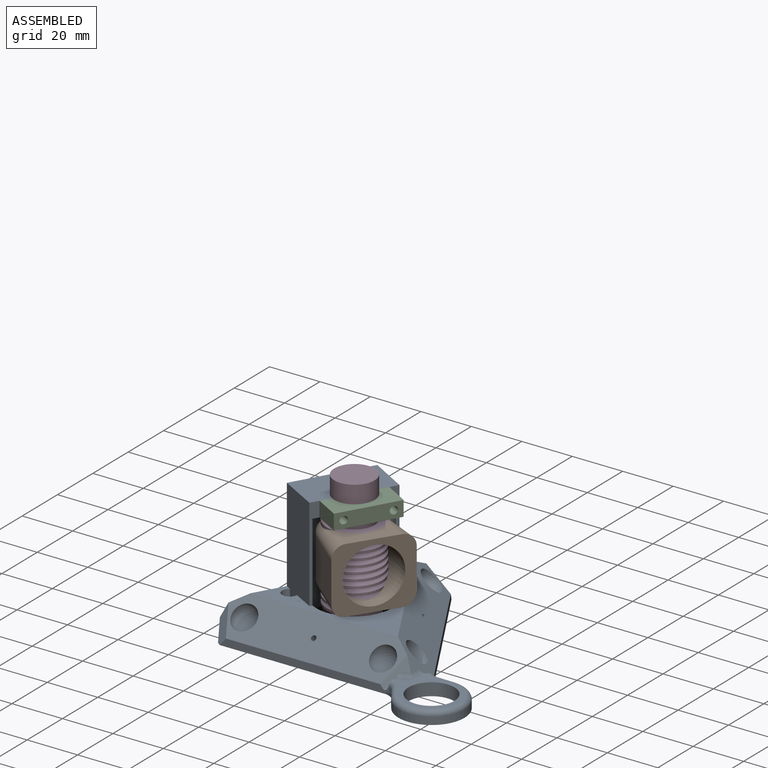
[diagram: assembled view]
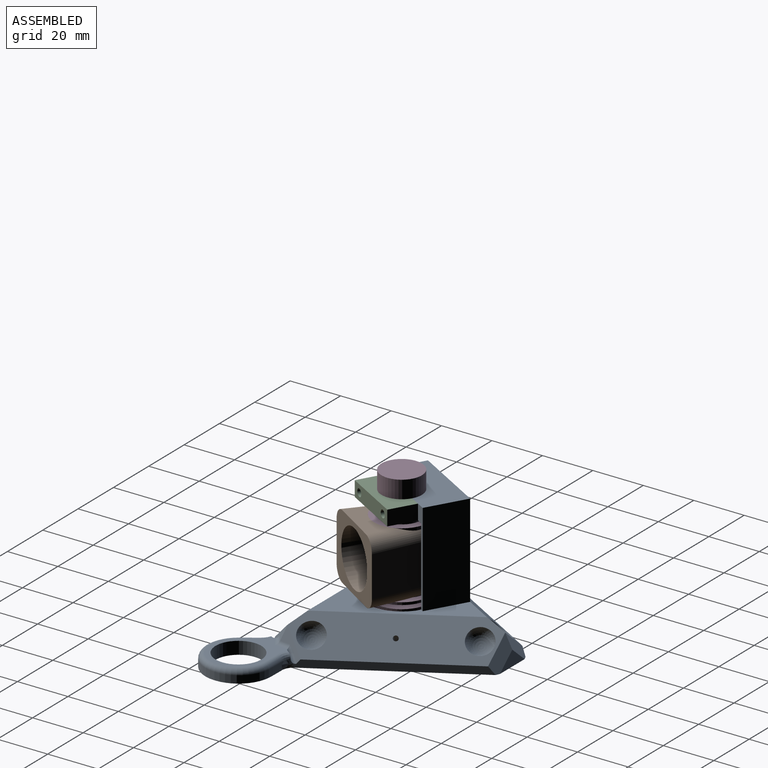
[diagram: assembled view, second angle]
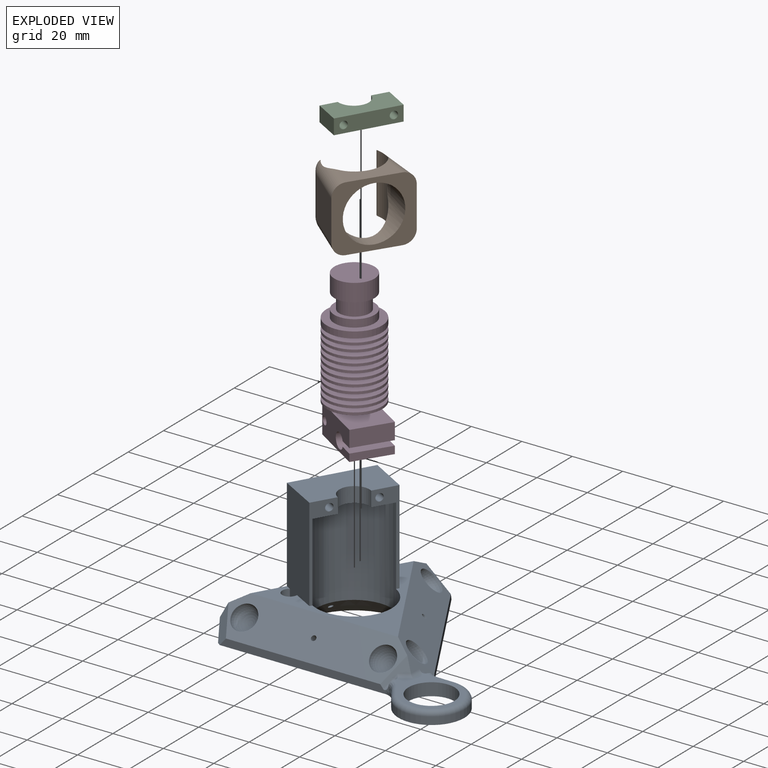
[diagram: exploded view]
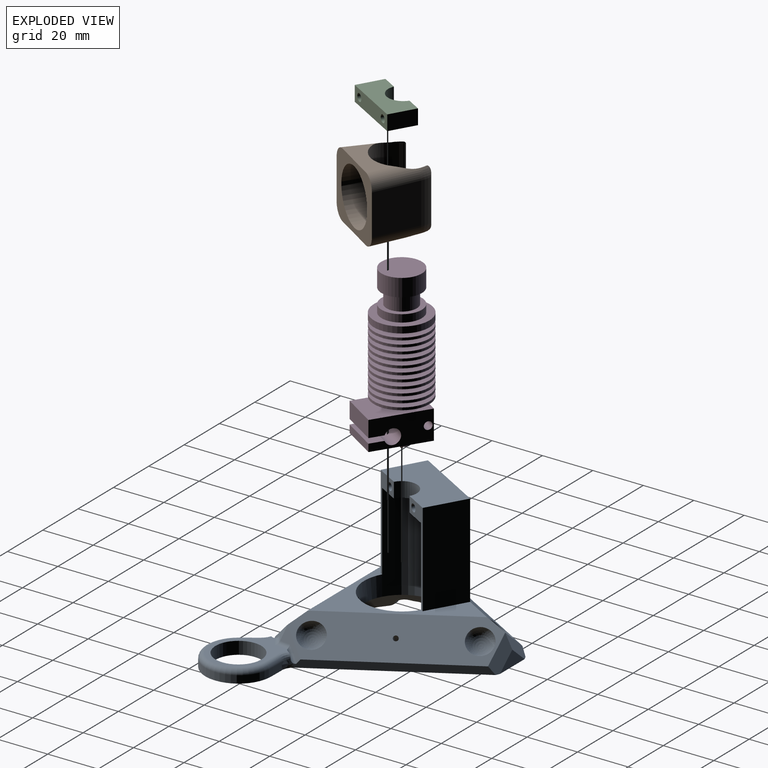
[diagram: exploded view, second angle]
ASSEMBLY  parts=4 mates=7
PART A: 66 faces, bbox 106.9x87.1x56.5 mm
  f0: plane 1.96x1.96mm, normal (0,0,-1), area 1.7mm2, adj f50,f62,f65
  f1: cone r=22mm half-angle=45deg, axis (0,0,-1), area 873.7mm2, adj f2,f9,f27,f28,f29,f56,f57,f62
  f2: plane 105.67x85.89mm, normal (0,0,-1), area 2695.6mm2, adj f1,f6,f7,f8,f19,f20,f21,f22
  f3: plane 37x8.78mm, normal (0.87,-0.5,0), area 86.6mm2, adj f5,f9,f50,f51,f52,f53,f55
  f4: plane 37x8.78mm, normal (0.87,-0.5,0), area 91.4mm2, adj f5,f9,f48,f51,f52,f53,f54
  f5: plane 58.43x50.6mm, normal (0,0,1), area 557mm2, adj f3,f4,f9,f10,f11,f12,f48,f50
  f6: plane 57.23x33.04mm, normal (-0.87,0.5,0), area 190.9mm2, adj f2,f10,f22,f25
  f7: plane 66.09x3mm, normal (0,-1,0), area 190.9mm2, adj f2,f11,f24,f26,f40
  f8: plane 57.23x33.04mm, normal (0.87,0.5,0), area 190.9mm2, adj f2,f12,f21,f23,f39
  f9: cylinder r=15mm len=39mm, axis (0,0,-1), area 2136.1mm2, adj f1,f3,f4,f5,f52,f56,f57,f59
  f10: plane 61.39x40.3mm, normal (-0.61,0.35,0.71), area 953.5mm2, adj f5,f6,f11,f12,f15,f16,f22,f25
  f11: plane 70.89x12mm, normal (0,-0.71,0.71), area 953.5mm2, adj f5,f7,f10,f12,f13,f14,f24,f26
  f12: plane 61.39x40.3mm, normal (0.61,0.35,0.71), area 953.5mm2, adj f5,f8,f10,f11,f17,f18,f21,f23
  f13: sphere r=5mm, area 157.1mm2, adj f11
  f14: sphere r=5mm, area 157.1mm2, adj f11
  f15: sphere r=5mm, area 157.1mm2, adj f10
  f16: sphere r=5mm, area 157.1mm2, adj f10
  f17: sphere r=5mm, area 157.1mm2, adj f12
  f18: sphere r=5mm, area 157.1mm2, adj f12
  f19: plane 13.93x6.03mm, normal (0,1,0), area 42mm2, adj f2,f21,f22
  f20: plane 12.06x6.96mm, normal (-0.87,-0.5,0), area 42mm2, adj f2,f25,f26
  f21: plane 11.4x9.7mm, normal (0.37,0.82,0.43), area 57.2mm2, adj f2,f8,f12,f19,f22
  f22: plane 11.4x9.7mm, normal (-0.37,0.82,0.43), area 57.2mm2, adj f2,f6,f10,f19,f21
  f23: plane 9.79x9.78mm, normal (0.9,-0.09,0.43), area 29.6mm2, adj f8,f12,f24,f38,f42
  f24: plane 9.79x8.4mm, normal (0.53,-0.73,0.43), area 29.6mm2, adj f7,f11,f23,f37,f41
  f25: plane 11.4x9.81mm, normal (-0.9,-0.09,0.43), area 57.2mm2, adj f2,f6,f10,f20,f26
  f26: plane 11.4x8.4mm, normal (-0.53,-0.73,0.43), area 57.2mm2, adj f2,f7,f11,f20,f25
  f27: cylinder r=1mm len=6.35mm, axis (0,-0.71,0.71), area 43.8mm2, adj f1,f11
  f28: cylinder r=1mm len=6.35mm, axis (-0.61,0.35,0.71), area 43.9mm2, adj f1,f10
  f29: cylinder r=1mm len=6.35mm, axis (0.61,0.35,0.71), area 43.9mm2, adj f1,f12
  f30: plane 1.92x1.92mm, normal (-0.87,0.5,0), area 1.1mm2, adj f36,f38,f39,f43
  f31: plane 1.71x1.71mm, normal (-0.87,0.5,0), area 0.9mm2, adj f37,f40,f47
  f32: cylinder r=13.1mm len=26.2mm, axis (0,0,-1), area 163.8mm2, adj f2,f33,f34,f45
  f33: plane 5.39x3.68mm, normal (-0.83,-0.56,0), area 19.1mm2, adj f2,f32,f40,f46
  f34: plane 5.37x3mm, normal (0.01,1,0), area 15.8mm2, adj f2,f32,f39,f44
  f35: cylinder r=9.1mm len=18.2mm, axis (0,0,-1), area 285.9mm2, adj f2,f36
  f36: plane 27.38x23.75mm, normal (0,0,1), area 183.1mm2, adj f30,f35,f37,f38,f41,f42,f43,f44
  f37: cylinder r=1mm len=5.8mm, axis (0.38,0.65,0.65), area 12.9mm2, adj f24,f31,f36,f40,f41,f47
  f38: cylinder r=1mm len=5.38mm, axis (0.38,0.65,-0.65), area 12.4mm2, adj f23,f30,f36,f39,f42
  f39: bspline ~6.15x5.19mm, area 13.3mm2, adj f2,f8,f30,f34,f38,f43
  f40: bspline ~6.2x5.6mm, area 13.3mm2, adj f2,f7,f31,f33,f37,f47
  f41: cylinder r=2mm len=5.48mm, axis (-0.81,-0.58,0), area 11mm2, adj f24,f36,f37,f42
  f42: cylinder r=2mm len=5.6mm, axis (-0.1,-1,0), area 11mm2, adj f23,f36,f38,f41
  f43: bspline ~6.39x3.37mm, area 11.5mm2, adj f30,f36,f39,f44
  f44: cylinder r=2mm len=5.45mm, axis (-1,0.01,0), area 17mm2, adj f34,f36,f43,f45
  f45: torus R=11.1mm, axis (0,0,-1), area 162.1mm2, adj f32,f36,f44,f46
  f46: cylinder r=2mm len=6.53mm, axis (0.56,-0.83,0), area 20.5mm2, adj f33,f36,f45,f47
  f47: bspline ~5.53x5.16mm, area 11mm2, adj f31,f36,f37,f40,f46
  f48: plane 37x14.72mm, normal (0.5,0.87,0), area 629mm2, adj f4,f5,f49,f51
  f49: plane 37x28.09mm, normal (-0.87,0.5,0), area 1185.8mm2, adj f10,f48,f50,f51,f54,f55
  f50: plane 49.45x14.95mm, normal (-0.49,-0.87,0), area 692.9mm2, adj f0,f3,f5,f49,f51,f62,f64,f65
  f51: plane 36.45x30.94mm, normal (0,0,1), area 493.4mm2, adj f3,f4,f48,f49,f50,f53
  f52: plane 28.06x22.61mm, normal (0,0,-1), area 300.9mm2, adj f3,f4,f9,f53
  f53: cylinder r=6mm len=11.2mm, axis (0,0,1), area 113.1mm2, adj f3,f4,f51,f52
  f54: cylinder r=1.5mm len=16.22mm, axis (0.87,-0.5,0), area 160.2mm2, adj f4,f49
  f55: cylinder r=1.5mm len=16.22mm, axis (0.87,-0.5,0), area 160.2mm2, adj f3,f49
  f56: plane 11x10.5mm, normal (0.52,0.85,0), area 104.6mm2, adj f1,f2,f9,f11,f58,f59
  f57: plane 11x10.45mm, normal (-0.52,-0.85,0), area 105mm2, adj f1,f2,f9,f58,f59
  f58: plane 16.69x11mm, normal (-0.84,0.54,0), area 218.7mm2, adj f2,f11,f56,f57,f59
  f59: plane 23.07x21.3mm, normal (0,0,-1), area 192.6mm2, adj f9,f11,f56,f57,f58
  f60: plane 8.33x4.45mm, normal (0.88,0.47,0), area 23.9mm2, adj f2,f61,f62,f63
  f61: plane 5.64x4.77mm, normal (0,0,-1), area 13.1mm2, adj f60,f62,f63,f64
  f62: cylinder r=3mm len=9.28mm, axis (0.89,0.47,0), area 35.7mm2, adj f0,f1,f2,f50,f60,f61,f64,f65
  f63: cylinder r=3mm len=7.61mm, axis (-0.93,-0.36,0), area 23.1mm2, adj f2,f60,f61,f64,f65
  f64: cylinder r=3mm len=12.3mm, axis (0,0,1), area 146.5mm2, adj f5,f50,f61,f62,f63,f65
  f65: bspline ~12.78x9.27mm, area 34.3mm2, adj f0,f1,f2,f50,f62,f63,f64
PART B: 21 faces, bbox 24x30x26.1 mm
  f0: cylinder r=11mm len=26.1mm, axis (0,0,-1), area 636.9mm2, adj f3,f4,f8,f9,f10,f11,f12,f13
  f1: plane 18.34x16.1mm, normal (0.13,-0.99,0), area 298mm2, adj f2,f7,f13,f15
  f2: cylinder r=12.66mm len=16.1mm, axis (0,0,-1), area 66.8mm2, adj f1,f3,f14,f16
  f3: cylinder r=0.86mm len=23.54mm, axis (0,0,-1), area 49.3mm2, adj f0,f2,f14,f16
  f4: cylinder r=0.86mm len=23.54mm, axis (0,0,-1), area 49.3mm2, adj f0,f5,f17,f19
  f5: cylinder r=12.66mm len=16.1mm, axis (0,0,-1), area 82.2mm2, adj f4,f6,f17,f19
  f6: plane 17.39x16.1mm, normal (0.13,0.99,0), area 282.5mm2, adj f5,f7,f18,f20
  f7: plane 30x26.1mm, normal (-1,0,0), area 381.2mm2, adj f1,f6,f8,f9,f11,f13,f15,f18
  f8: plane 19.91x9.86mm, normal (0,0,1), area 132.7mm2, adj f0,f7,f15,f20
  f9: plane 19.91x9.86mm, normal (0,0,-1), area 132.7mm2, adj f0,f7,f13,f18
  f10: plane 3.33x0.13mm, normal (-1,0,0), area 0.3mm2, adj f0,f11
  f11: cylinder r=11mm len=22mm, axis (-1,0,0), area 662.3mm2, adj f0,f7,f10,f12
  f12: plane 3.33x0.13mm, normal (-1,0,0), area 0.3mm2, adj f0,f11
  f13: cylinder r=5mm len=19.01mm, axis (0.99,0.13,0), area 124.1mm2, adj f0,f1,f7,f9,f14
  f14: torus R=7.66mm, axis (0,0,1), area 18mm2, adj f0,f2,f3,f13
  f15: cylinder r=5mm len=19.01mm, axis (-0.99,-0.13,0), area 124.1mm2, adj f0,f1,f7,f8,f16
  f16: torus R=7.66mm, axis (0,0,1), area 18mm2, adj f0,f2,f3,f15
  f17: torus R=7.66mm, axis (0,0,1), area 22mm2, adj f0,f4,f5,f18
  f18: cylinder r=5mm len=18.13mm, axis (-0.99,0.13,0), area 120mm2, adj f0,f6,f7,f9,f17
  f19: torus R=7.66mm, axis (0,0,1), area 22mm2, adj f0,f4,f5,f20
  f20: cylinder r=5mm len=18.13mm, axis (0.99,-0.13,0), area 120mm2, adj f0,f6,f7,f8,f19
PART C: 10 faces, bbox 25x11x6 mm
  f0: plane 6.53x6mm, normal (0,1,0), area 32.1mm2, adj f1,f5,f6,f7,f9
  f1: plane 11x6mm, normal (-1,0,0), area 66mm2, adj f0,f2,f5,f6
  f2: plane 25x6mm, normal (0,-1,0), area 135.9mm2, adj f1,f3,f5,f6,f8,f9
  f3: plane 11x6mm, normal (1,0,0), area 66mm2, adj f2,f4,f5,f6
  f4: plane 6.53x6mm, normal (0,1,0), area 32.1mm2, adj f3,f5,f6,f7,f8
  f5: plane 25x11mm, normal (0,0,1), area 225.6mm2, adj f0,f1,f2,f3,f4,f7
  f6: plane 25x11mm, normal (0,0,-1), area 225.6mm2, adj f0,f1,f2,f3,f4,f7
  f7: cylinder r=6mm len=11.94mm, axis (0,0,1), area 105.9mm2, adj f0,f4,f5,f6
  f8: cylinder r=1.5mm len=11mm, axis (0,-1,0), area 103.7mm2, adj f2,f4
  f9: cylinder r=1.5mm len=11mm, axis (0,-1,0), area 103.7mm2, adj f0,f2
PART D: 74 faces, bbox 26x22x64.5 mm
  f0: plane 16x3mm, normal (1,0,0), area 48mm2, adj f55,f57,f59,f62
  f1: plane 22x22mm, normal (0,0,1), area 329.9mm2, adj f2,f53
  f2: cylinder r=11mm len=22mm, axis (0,0,-1), area 69.1mm2, adj f1,f3
  f3: plane 22x22mm, normal (0,0,-1), area 329.9mm2, adj f2,f4
  f4: cylinder r=4mm len=8mm, axis (0,0,-1), area 37.7mm2, adj f3,f5
  f5: plane 22x22mm, normal (0,0,1), area 329.9mm2, adj f4,f6
  f6: cylinder r=11mm len=22mm, axis (0,0,-1), area 69.1mm2, adj f5,f7
  f7: plane 22x22mm, normal (0,0,-1), area 329.9mm2, adj f6,f8
  f8: cylinder r=4mm len=8mm, axis (0,0,-1), area 37.7mm2, adj f7,f9
  f9: plane 22x22mm, normal (0,0,1), area 329.9mm2, adj f8,f10
  f10: cylinder r=11mm len=22mm, axis (0,0,-1), area 69.1mm2, adj f9,f11
  f11: plane 22x22mm, normal (0,0,-1), area 329.9mm2, adj f10,f12
  f12: cylinder r=4mm len=8mm, axis (0,0,-1), area 37.7mm2, adj f11,f13
  f13: plane 22x22mm, normal (0,0,1), area 329.9mm2, adj f12,f14
  f14: cylinder r=11mm len=22mm, axis (0,0,-1), area 69.1mm2, adj f13,f15
  f15: plane 22x22mm, normal (0,0,-1), area 329.9mm2, adj f14,f16
  f16: cylinder r=4mm len=8mm, axis (0,0,-1), area 37.7mm2, adj f15,f17
  f17: plane 22x22mm, normal (0,0,1), area 329.9mm2, adj f16,f18
  f18: cylinder r=11mm len=22mm, axis (0,0,-1), area 69.1mm2, adj f17,f19
  f19: plane 22x22mm, normal (0,0,-1), area 329.9mm2, adj f18,f20
  f20: cylinder r=4mm len=8mm, axis (0,0,-1), area 37.7mm2, adj f19,f21
  f21: plane 22x22mm, normal (0,0,1), area 329.9mm2, adj f20,f22
  f22: cylinder r=11mm len=22mm, axis (0,0,-1), area 69.1mm2, adj f21,f23
  f23: plane 22x22mm, normal (0,0,-1), area 329.9mm2, adj f22,f24
  f24: cylinder r=4mm len=8mm, axis (0,0,-1), area 37.7mm2, adj f23,f25
  f25: plane 22x22mm, normal (0,0,1), area 329.9mm2, adj f24,f26
  f26: cylinder r=11mm len=22mm, axis (0,0,-1), area 69.1mm2, adj f25,f27
  f27: plane 22x22mm, normal (0,0,-1), area 329.9mm2, adj f26,f28
  f28: cylinder r=4mm len=8mm, axis (0,0,-1), area 37.7mm2, adj f27,f29
  f29: plane 22x22mm, normal (0,0,1), area 329.9mm2, adj f28,f30
  f30: cylinder r=11mm len=22mm, axis (0,0,-1), area 69.1mm2, adj f29,f31
  f31: plane 22x22mm, normal (0,0,-1), area 329.9mm2, adj f30,f32
  f32: cylinder r=4mm len=8mm, axis (0,0,-1), area 37.7mm2, adj f31,f33
  f33: plane 22x22mm, normal (0,0,1), area 329.9mm2, adj f32,f34
  f34: cylinder r=11mm len=22mm, axis (0,0,-1), area 69.1mm2, adj f33,f35
  f35: plane 22x22mm, normal (0,0,-1), area 341.6mm2, adj f34,f54
  f36: plane 16x16mm, normal (0,0,1), area 201.1mm2, adj f37
  f37: cylinder r=8mm len=16mm, axis (0,0,-1), area 351.9mm2, adj f36,f38
  f38: plane 16x16mm, normal (0,0,-1), area 88mm2, adj f37,f39
  f39: cylinder r=6mm len=12mm, axis (0,0,-1), area 226.2mm2, adj f38,f40
  f40: plane 16x16mm, normal (0,0,1), area 88mm2, adj f39,f41
  f41: cylinder r=8mm len=16mm, axis (0,0,-1), area 150.8mm2, adj f40,f42
  f42: plane 22x22mm, normal (0,0,1), area 179.1mm2, adj f41,f43
  f43: cylinder r=11mm len=22mm, axis (0,0,-1), area 172.8mm2, adj f42,f44
  f44: plane 22x22mm, normal (0,0,-1), area 329.9mm2, adj f43,f45
  f45: cylinder r=4mm len=8mm, axis (0,0,-1), area 37.7mm2, adj f44,f46
  f46: plane 22x22mm, normal (0,0,1), area 329.9mm2, adj f45,f47
  f47: cylinder r=11mm len=22mm, axis (0,0,-1), area 69.1mm2, adj f46,f48
  f48: plane 22x22mm, normal (0,0,-1), area 329.9mm2, adj f47,f49
  f49: cylinder r=4mm len=8mm, axis (0,0,-1), area 37.7mm2, adj f48,f50
  f50: plane 22x22mm, normal (0,0,1), area 329.9mm2, adj f49,f51
  f51: cylinder r=11mm len=22mm, axis (0,0,-1), area 69.1mm2, adj f50,f52
  f52: plane 22x22mm, normal (0,0,-1), area 329.9mm2, adj f51,f53
  f53: cylinder r=4mm len=8mm, axis (0,0,-1), area 37.7mm2, adj f1,f52
  f54: cylinder r=3.5mm len=7mm, axis (0,0,1), area 55mm2, adj f35,f60
  f55: plane 23x11.5mm, normal (0,-1,0), area 217.6mm2, adj f0,f56,f58,f59,f60,f61,f62,f63
  f56: plane 16x11.5mm, normal (-1,0,0), area 184mm2, adj f55,f57,f59,f60
  f57: plane 23x11.5mm, normal (0,1,0), area 217.6mm2, adj f0,f56,f58,f59,f60,f61,f62,f63
  f58: plane 16x6.5mm, normal (1,0,0), area 104mm2, adj f55,f57,f60,f63
  f59: plane 23x16mm, normal (0,0,-1), area 325.6mm2, adj f0,f55,f56,f57,f65,f66,f67,f68
  f60: plane 23x16mm, normal (0,0,1), area 329.5mm2, adj f54,f55,f56,f57,f58
  f61: cylinder r=3mm len=16mm, axis (0,-1,0), area 269mm2, adj f55,f57,f62,f63
  f62: plane 16x5.67mm, normal (0,0,1), area 90.7mm2, adj f0,f55,f57,f61
  f63: plane 16x5.67mm, normal (0,0,-1), area 90.7mm2, adj f55,f57,f58,f61
  f64: cylinder r=1.55mm len=16mm, axis (0,-1,0), area 155.8mm2, adj f55,f57
  f65: plane 3.5x2.5mm, normal (0.5,0.87,0), area 10.1mm2, adj f59,f66,f70,f71
  f66: plane 4.04x2.5mm, normal (1,0,0), area 10.1mm2, adj f59,f65,f67,f71
  f67: plane 3.5x2.5mm, normal (0.5,-0.87,0), area 10.1mm2, adj f59,f66,f68,f71
  f68: plane 3.5x2.5mm, normal (-0.5,-0.87,0), area 10.1mm2, adj f59,f67,f69,f71
  f69: plane 4.04x2.5mm, normal (-1,0,0), area 10.1mm2, adj f59,f68,f70,f71
  f70: plane 3.5x2.5mm, normal (-0.5,0.87,0), area 10.1mm2, adj f59,f65,f69,f71
  f71: plane 8.08x7mm, normal (0,0,-1), area 35.1mm2, adj f65,f66,f67,f68,f69,f70,f72
  f72: cone r=1.53mm half-angle=30deg, axis (0,0,1), area 13.8mm2, adj f71,f73
  f73: plane 0.75x0.75mm, normal (0,0,-1), area 0.4mm2, adj f72
PLACE A t=(-37.99,1.95,15.66)mm fixed
PLACE B rot(axis=(0,0,1),147.4deg) t=(34.29,34.49,32.56)mm
PLACE C rot(axis=(0,0,1),60deg) t=(15.44,14.49,61.66)mm
PLACE D rot(axis=(0,0,-1),32.6deg) t=(12.17,30.82,28.66)mm
MATE cylindrical B.f0 <-> D.f2  axis (0,0,-1) through (12.17,30.82,58.66)mm
MATE cylindrical D.f2 <-> A.f53  axis (0,0,-1) through (12.17,30.82,64.66)mm
MATE planar C.f5 <-> A.f51  axis (0,0,1) through (17.54,27.71,67.66)mm
MATE cylindrical C.f8 <-> A.f54  axis (0.87,-0.5,0) through (26.19,33.11,64.66)mm
MATE planar B.f8 <-> D.f2  axis (0,0,1) through (23.23,23.76,58.66)mm
MATE planar C.f0 <-> A.f55  axis (-0.87,0.5,0) through (7.52,22.77,64.66)mm
MATE planar D.f72 <-> A.f51  axis (0,0,-1) through (12.17,30.82,67.66)mm
